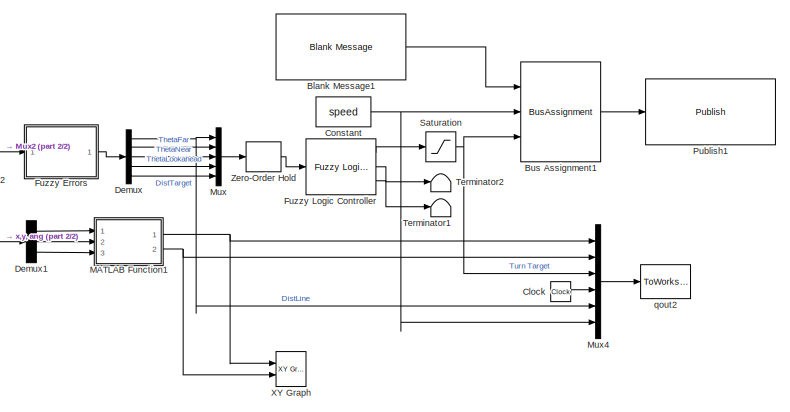
[diagram: root canvas - part 1/2, right side, full height]
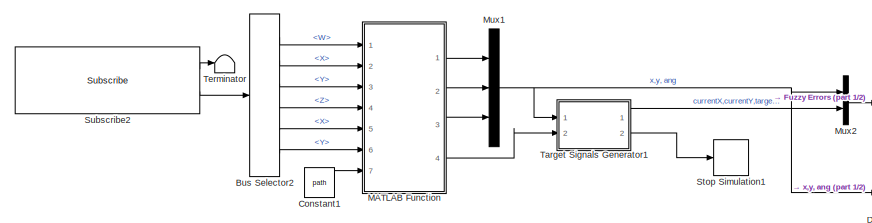
[diagram: root canvas - part 2/2, middle left region]
MODEL slx_5547b32f0b7c
KIND model
CONFIG AbsTol = auto
CONFIG EnableMultiTasking = off
CONFIG FixedStep = 0.01
CONFIG MaxStep = auto
CONFIG MinStep = auto
CONFIG RelTol = 1e-3
CONFIG SampleTimeConstraint = Unconstrained
CONFIG SolverName = FixedStepAuto
CONFIG StartTime = 0.0
CONFIG StopTime = 1000
BLOCK [Reference] Blank Message1  REF=robotlib/Blank Message
  Ports = [0, 1]
  SourceBlock = robotlib/Blank Message
  SourceProductBaseCode = RR
  SourceType = ROS Blank Message
BLOCK [BusAssignment] Bus Assignment1
  AssignedSignals = Linear.X,Angular.Z
  Ports = [3, 1]
BLOCK [BusSelector] Bus Selector2
  OutputSignals = Pose.Pose.Orientation.W,Pose.Pose.Orientation.X,Pose.Pose.Orientation.Y,Pose.Pose.Orientation.Z,Pose.Pose.Position.X,Pose.Pose.Position.Y
  Ports = [1, 6]
BLOCK [Clock] Clock
BLOCK [Constant] Constant
  Value = speed
BLOCK [Constant] Constant1
  Value = path
BLOCK [Demux] Demux
  Outputs = 5
  Ports = [1, 5]
BLOCK [Demux] Demux1
  Outputs = 3
  Ports = [1, 3]
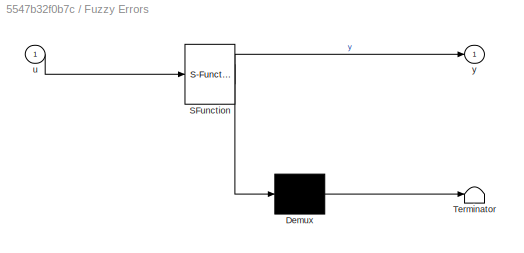
BLOCK [SubSystem] Fuzzy Errors
  ErrorFcn = Stateflow.Translate.translate
  PermitHierarchicalResolution = ExplicitOnly
  Ports = [1, 1]
  RequestExecContextInheritance = off
  SFBlockType = MATLAB Function
  TreatAsAtomicUnit = on
BLOCK [Demux] Fuzzy Errors/ Demux 
  Outputs = 1
  Ports = [1, 1]
BLOCK [S-Function] Fuzzy Errors/ SFunction 
  EnableBusSupport = off
  FunctionName = sf_sfun
  PortCounts = [1 2]
  Ports = [1, 2]
  SFcnIsStateOwnerBlock = off
  SFunctionDeploymentMode = off
  Tag = Stateflow S-Function 5
BLOCK [Terminator] Fuzzy Errors/ Terminator 
BLOCK [Inport] Fuzzy Errors/u
BLOCK [Outport] Fuzzy Errors/y
  VectorParamsAs1DForOutWhenUnconnected = off
BLOCK [Reference] Fuzzy Logic Controller  REF=fuzblock/Fuzzy Logic   (lib defined in mdl_858b3b3e7478)
Controller
  Ports = [1, 3]
  SourceBlock = fuzblock/Fuzzy Logic \nController
  SourceProductBaseCode = FL
  SourceType = Fuzzy Inference System
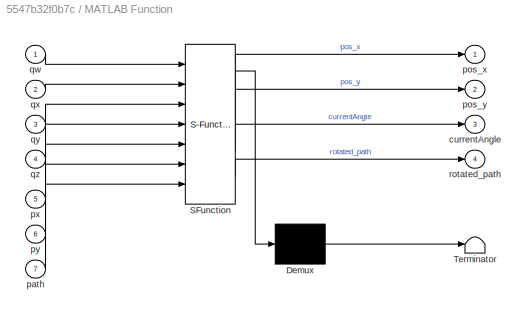
BLOCK [SubSystem] MATLAB Function
  ErrorFcn = Stateflow.Translate.translate
  PermitHierarchicalResolution = ExplicitOnly
  Ports = [7, 4]
  RequestExecContextInheritance = off
  SFBlockType = MATLAB Function
  TreatAsAtomicUnit = on
BLOCK [Demux] MATLAB Function/ Demux 
  Outputs = 1
  Ports = [1, 1]
BLOCK [S-Function] MATLAB Function/ SFunction 
  EnableBusSupport = off
  FunctionName = sf_sfun
  PortCounts = [7 5]
  Ports = [7, 5]
  SFcnIsStateOwnerBlock = off
  SFunctionDeploymentMode = off
  Tag = Stateflow S-Function 2
BLOCK [Terminator] MATLAB Function/ Terminator 
BLOCK [Outport] MATLAB Function/currentAngle
  Port = 3
BLOCK [Inport] MATLAB Function/path
  Port = 7
BLOCK [Outport] MATLAB Function/pos_x
BLOCK [Outport] MATLAB Function/pos_y
  Port = 2
BLOCK [Inport] MATLAB Function/px
  Port = 5
BLOCK [Inport] MATLAB Function/py
  Port = 6
BLOCK [Inport] MATLAB Function/qw
BLOCK [Inport] MATLAB Function/qx
  Port = 2
BLOCK [Inport] MATLAB Function/qy
  Port = 3
BLOCK [Inport] MATLAB Function/qz
  Port = 4
BLOCK [Outport] MATLAB Function/rotated_path
  Port = 4
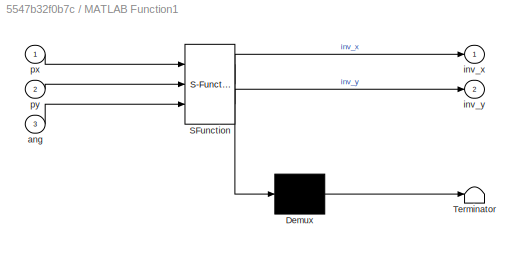
BLOCK [SubSystem] MATLAB Function1
  ErrorFcn = Stateflow.Translate.translate
  PermitHierarchicalResolution = ExplicitOnly
  Ports = [3, 2]
  RequestExecContextInheritance = off
  SFBlockType = MATLAB Function
  TreatAsAtomicUnit = on
BLOCK [Demux] MATLAB Function1/ Demux 
  Outputs = 1
  Ports = [1, 1]
BLOCK [S-Function] MATLAB Function1/ SFunction 
  EnableBusSupport = off
  FunctionName = sf_sfun
  PortCounts = [3 3]
  Ports = [3, 3]
  SFcnIsStateOwnerBlock = off
  SFunctionDeploymentMode = off
  Tag = Stateflow S-Function 4
BLOCK [Terminator] MATLAB Function1/ Terminator 
BLOCK [Inport] MATLAB Function1/ang
  Port = 3
BLOCK [Outport] MATLAB Function1/inv_x
BLOCK [Outport] MATLAB Function1/inv_y
  Port = 2
BLOCK [Inport] MATLAB Function1/px
BLOCK [Inport] MATLAB Function1/py
  Port = 2
BLOCK [Mux] Mux
  DisplayOption = bar
  Inputs = 5
  Ports = [5, 1]
BLOCK [Mux] Mux1
  DisplayOption = bar
  Inputs = 3
  Ports = [3, 1]
BLOCK [Mux] Mux2
  DisplayOption = bar
  Inputs = 2
  Ports = [2, 1]
BLOCK [Mux] Mux4
  DisplayOption = bar
  Inputs = 6
  Ports = [6, 1]
BLOCK [Reference] Publish1  REF=robotlib/Publish
  Ports = [1]
  SourceBlock = robotlib/Publish
  SourceProductBaseCode = RR
  SourceType = ROS Publish
BLOCK [Saturate] Saturation
  LowerLimit = -angVeloSat
  UpperLimit = angVeloSat
BLOCK [Stop] Stop Simulation1
BLOCK [Reference] Subscribe2  REF=robotlib/Subscribe
  Ports = [0, 2]
  SourceBlock = robotlib/Subscribe
  SourceProductBaseCode = RR
  SourceType = ROS Subscribe
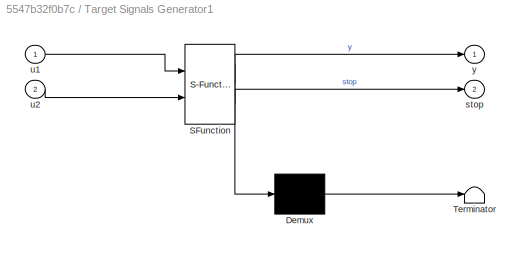
BLOCK [SubSystem] Target Signals Generator1
  ErrorFcn = Stateflow.Translate.translate
  PermitHierarchicalResolution = ExplicitOnly
  Ports = [2, 2]
  RequestExecContextInheritance = off
  SFBlockType = MATLAB Function
  TreatAsAtomicUnit = on
BLOCK [Demux] Target Signals Generator1/ Demux 
  Outputs = 1
  Ports = [1, 1]
BLOCK [S-Function] Target Signals Generator1/ SFunction 
  EnableBusSupport = off
  FunctionName = sf_sfun
  PortCounts = [2 3]
  Ports = [2, 3]
  SFcnIsStateOwnerBlock = off
  SFunctionDeploymentMode = off
  Tag = Stateflow S-Function 6
BLOCK [Terminator] Target Signals Generator1/ Terminator 
BLOCK [Outport] Target Signals Generator1/stop
  Port = 2
  VectorParamsAs1DForOutWhenUnconnected = off
BLOCK [Inport] Target Signals Generator1/u1
BLOCK [Inport] Target Signals Generator1/u2
  Port = 2
BLOCK [Outport] Target Signals Generator1/y
  VectorParamsAs1DForOutWhenUnconnected = off
BLOCK [Terminator] Terminator
BLOCK [Terminator] Terminator1
BLOCK [Terminator] Terminator2
BLOCK [Reference] XY Graph  REF=simulink/Sinks/XY Graph
  Ports = [2]
  SourceBlock = simulink/Sinks/XY Graph
  SourceProductBaseCode = SL
  SourceType = XY scope.
BLOCK [ZeroOrderHold] Zero-Order Hold
  SampleTime = -1
BLOCK [ToWorkspace] qout2
  MaxDataPoints = inf
  Ports = [1]
  SampleTime = -1
  VariableName = fzyC
LINE Blank Message1:1 -> Bus Assignment1:1
LINE Bus Assignment1:1 -> Publish1:1
LINE Bus Selector2:1 -> MATLAB Function:1
LINE Bus Selector2:2 -> MATLAB Function:2
LINE Bus Selector2:3 -> MATLAB Function:3
LINE Bus Selector2:4 -> MATLAB Function:4
LINE Bus Selector2:5 -> MATLAB Function:5
LINE Bus Selector2:6 -> MATLAB Function:6
LINE Clock:1 -> Mux4:4
LINE Constant1:1 -> MATLAB Function:7
NET Constant:1 -> Bus Assignment1:2, Mux4:6
LINE Demux1:1 -> MATLAB Function1:1
LINE Demux1:2 -> MATLAB Function1:2
LINE Demux1:3 -> MATLAB Function1:3
NET Demux:1 -> Mux4:5, Mux:1
LINE Demux:2 -> Mux:2
LINE Demux:3 -> Mux:3
LINE Demux:4 -> Mux:4
LINE Demux:5 -> Mux:5
LINE Fuzzy Errors:1 -> Demux:1
LINE Fuzzy Logic Controller:1 -> Saturation:1
LINE Fuzzy Logic Controller:2 -> Terminator2:1
LINE Fuzzy Logic Controller:3 -> Terminator1:1
NET MATLAB Function1:1 -> Mux4:1, XY Graph:1
NET MATLAB Function1:2 -> Mux4:2, XY Graph:2
LINE MATLAB Function:1 -> Mux1:1
LINE MATLAB Function:2 -> Mux1:2
LINE MATLAB Function:3 -> Mux1:3
LINE MATLAB Function:4 -> Target Signals Generator1:2
NET Mux1:1 -> Demux1:1, Mux2:1, Target Signals Generator1:1
LINE Mux2:1 -> Fuzzy Errors:1
LINE Mux4:1 -> qout2:1
LINE Mux:1 -> Zero-Order Hold:1
NET Saturation:1 -> Bus Assignment1:3, Mux4:3
LINE Subscribe2:1 -> Terminator:1
LINE Subscribe2:2 -> Bus Selector2:1
LINE Target Signals Generator1:1 -> Mux2:2
LINE Target Signals Generator1:2 -> Stop Simulation1:1
LINE Zero-Order Hold:1 -> Fuzzy Logic Controller:1
note: NET lines group one-source signal fan-out (src -> all destinations, sorted); 1:1 wires keep LINE
CHART MATLAB Function states=1 transitions=1
  STATE_LABEL 'eML_blk_kernel()'
  STATE_LABEL 'SCRIPT:\nfunction [pos_x, pos_y, currentAngle, rotated_path] = fcn(qw, qx, qy, qz, px, py, path)\n    persistent init_x;\n    persistent init_y;\n    persistent init_ang;\n    persistent rotation;\n    if isempty(init_x)\n        init_x = px;\n        init_y = py;\n        init_ang = -atan2(2*(qw*qz + qx*qy),1-2*(qy^2 + qz^2));\n        if((init_ang < -pi) || (pi < init_ang))\n            init_ang = mod(init...<+401ch>'
CHART MATLAB Function1 states=1 transitions=1
  STATE_LABEL 'eML_blk_kernel()'
  STATE_LABEL 'SCRIPT:\nfunction [inv_x, inv_y] = fcn(px, py, ang)\n    persistent init_ang;\n    persistent rotation_inv;\n    if isempty(init_ang)\n        init_ang = -ang;\n        rotation_inv = [cos(init_ang), sin(init_ang);\n                       -sin(init_ang),  cos(init_ang)];\n    end\n    rotated_path = [px,py] * rotation_inv;\n    inv_x = rotated_path(1);\n    inv_y = rotated_path(2);\nend'
CHART Fuzzy Errors states=1 transitions=1
  STATE_LABEL 'eML_blk_kernel()'
  STATE_LABEL 'SCRIPT:\nfunction y  = fcn(u)\nkLOOK = 0.95;\n\npos=[u(1) u(2)]; % [x,y]\ncurrentAngle = u(3)\ncurrentPoint=[u(4) u(5)];\ntarget=[u(6) u(7)];\nfuture=[u(8) u(9)];\n\nA = [(currentPoint(2)-target(2)), target(1)-currentPoint(1); target(1)-currentPoint(1), target(2)-currentPoint(2)];\nb = [ target(1)*currentPoint(2)-currentPoint(1)*target(2); pos(1)*(target(1)-currentPoint(1)) + pos(2)*(target(2)-currentPoint(2...<+1227ch>'
CHART Target Signals Generator1 states=1 transitions=1
  STATE_LABEL 'eML_blk_kernel()'
  STATE_LABEL 'SCRIPT:\nfunction [y,stop] = fcn(u1,u2)\npersistent pathcount;\npersistent pathlength;\npersistent path; %error in code, initially used path but this is already a matlab function\npersistent pathPre;\n\nif isempty(pathcount)\n   pathcount=1;\n   pathPre=u2;\n   [pathlength,~]=size(pathPre);  \n   path=[pathPre; pathPre(pathlength,1)+100 pathPre(pathlength,2)+100]; %sim takes multiple iterations to stop after...<+1099ch>'
CHART  states=0 transitions=0
CHART  states=0 transitions=0
CHART  states=0 transitions=0
CHART  states=0 transitions=0
